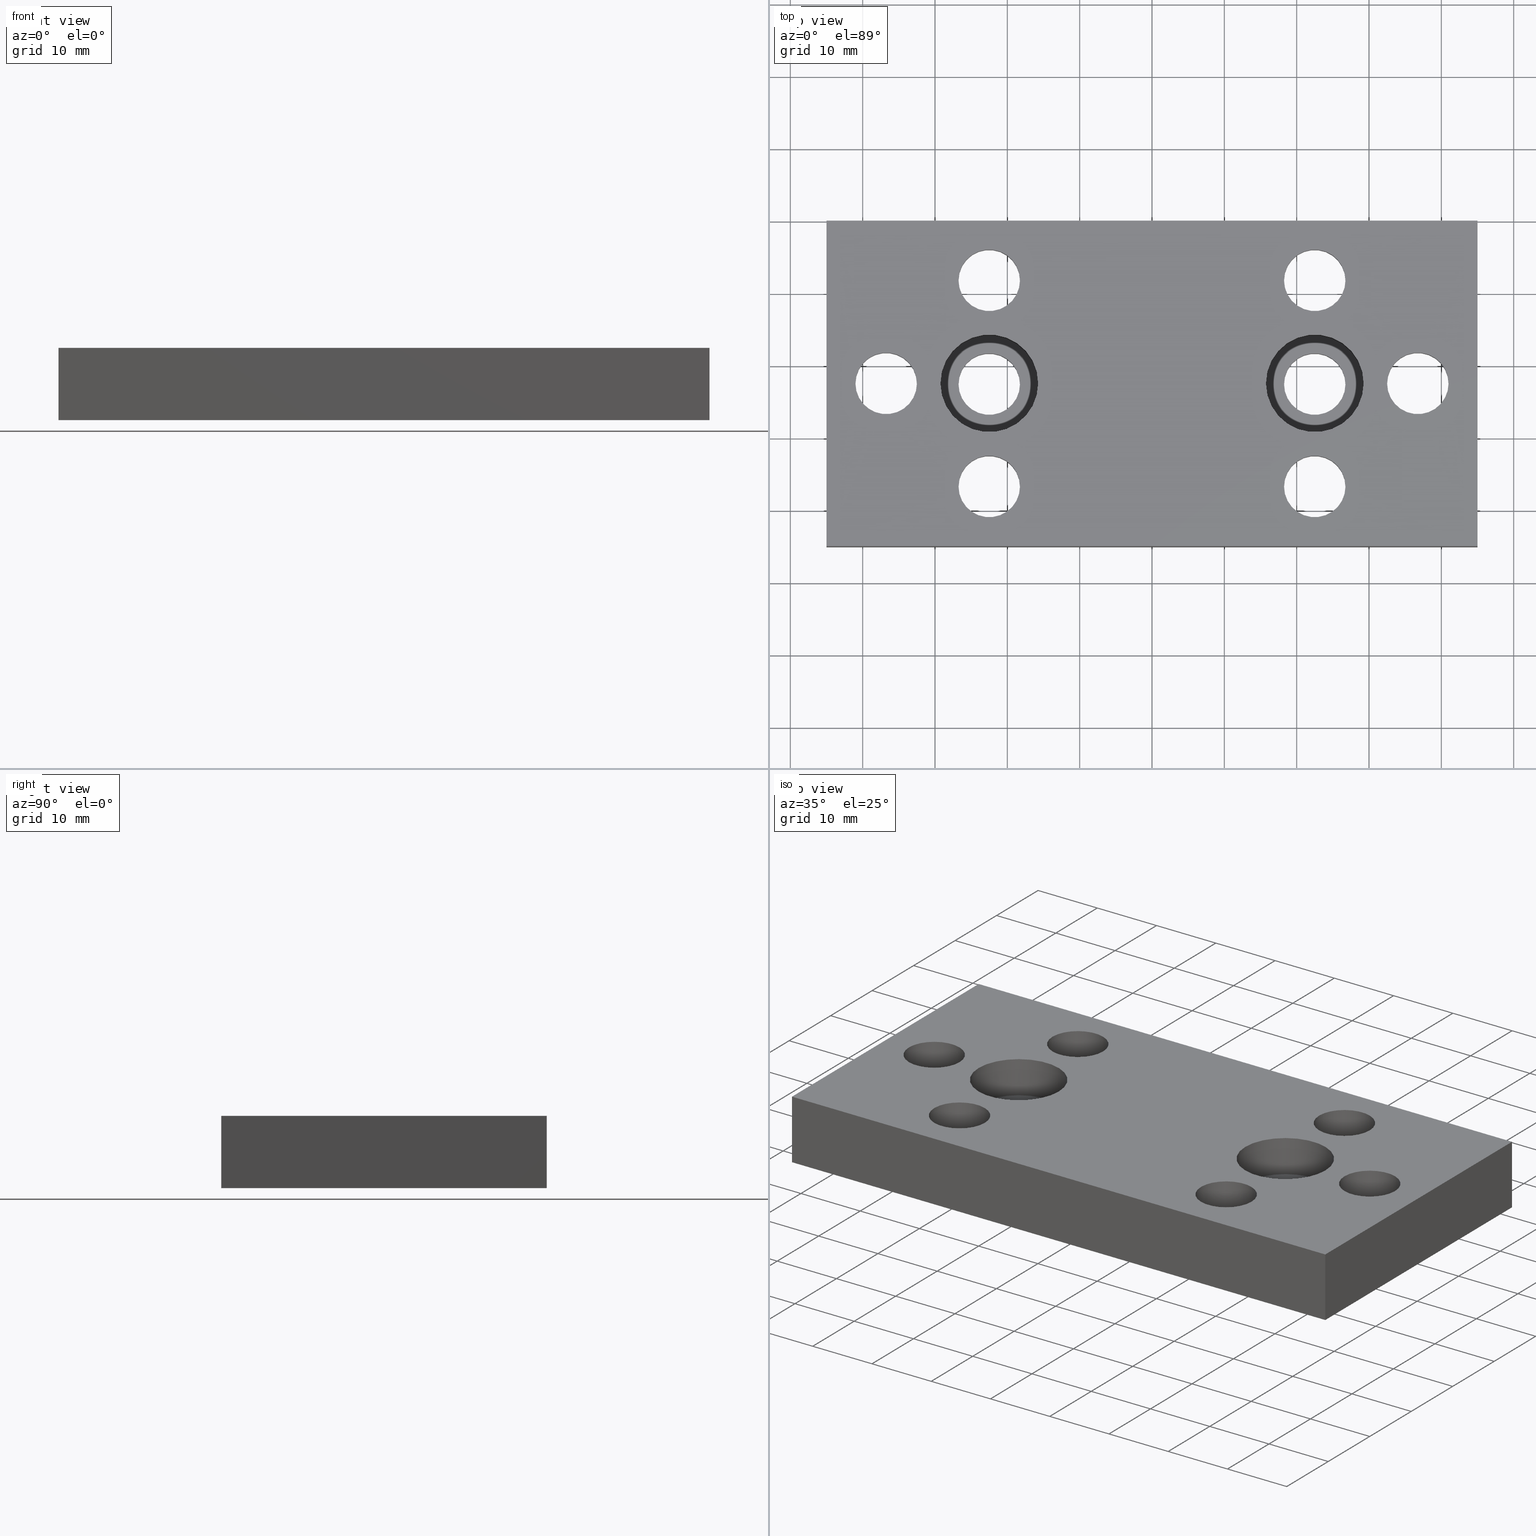
[diagram: canonical four-view strip — front | top / right | iso, engineering-drawing reading convention]
A machine part, canonical four-view strip (front | top / right | iso — engineering-drawing reading convention). The complete STEP part file that produces these views, byte-faithful:
ISO-10303-21;
HEADER;
/****************************************************************
 * Generated by software with PDE/Lib inside                    *
 * PDElib Version v4.4, created Mon 02/23/2004                  *
 * International Technegroup Inc. (www.iti-oh.com)              *
 ****************************************************************/
FILE_DESCRIPTION(('STEP AP203'),'2;1');
FILE_NAME('30.108.00.stp','2011-03-21T16:22:35',(''),(''),'2009.3.110','THINKDESIGN','');
FILE_SCHEMA(('CONFIG_CONTROL_DESIGN'));
ENDSEC;
DATA;
#2=CARTESIAN_POINT('',(44.999999999819920,0.0,10.0));
#3=DIRECTION('',(0.0,-1.0,0.0));
#4=DIRECTION('',(-1.0,0.0,0.0));
#5=AXIS2_PLACEMENT_3D('',#2,#3,#4);
#6=PLANE('',#5);
#7=CARTESIAN_POINT('',(44.999999999819920,0.0,10.0));
#8=VERTEX_POINT('',#7);
#9=CARTESIAN_POINT('',(44.999999999819920,0.0,0.0));
#10=VERTEX_POINT('',#9);
#11=CARTESIAN_POINT('',(44.999999999819920,0.0,10.0));
#12=DIRECTION('',(0.0,0.0,-1.0));
#13=VECTOR('',#12,10.0);
#14=LINE('',#11,#13);
#15=EDGE_CURVE('',#8,#10,#14,.T.);
#16=ORIENTED_EDGE('',*,*,#15,.T.);
#17=CARTESIAN_POINT('',(-44.999999999820375,0.0,0.0));
#18=VERTEX_POINT('',#17);
#19=CARTESIAN_POINT('',(44.999999999819920,0.0,0.0));
#20=DIRECTION('',(-1.0,0.0,0.0));
#21=VECTOR('',#20,89.999999999640295);
#22=LINE('',#19,#21);
#23=EDGE_CURVE('',#10,#18,#22,.T.);
#24=ORIENTED_EDGE('',*,*,#23,.T.);
#25=CARTESIAN_POINT('',(-44.999999999820375,0.0,10.0));
#26=VERTEX_POINT('',#25);
#27=CARTESIAN_POINT('',(-44.999999999820375,0.0,10.0));
#28=DIRECTION('',(0.0,0.0,-1.0));
#29=VECTOR('',#28,10.0);
#30=LINE('',#27,#29);
#31=EDGE_CURVE('',#26,#18,#30,.T.);
#32=ORIENTED_EDGE('',*,*,#31,.F.);
#33=CARTESIAN_POINT('',(44.999999999819920,0.0,10.0));
#34=DIRECTION('',(-1.0,0.0,0.0));
#35=VECTOR('',#34,89.999999999640295);
#36=LINE('',#33,#35);
#37=EDGE_CURVE('',#8,#26,#36,.T.);
#38=ORIENTED_EDGE('',*,*,#37,.F.);
#39=EDGE_LOOP('',(#16,#24,#32,#38));
#40=FACE_OUTER_BOUND('',#39,.T.);
#41=ADVANCED_FACE('',(#40),#6,.F.);
#42=CARTESIAN_POINT('',(-44.999999999820375,0.0,10.0));
#43=DIRECTION('',(1.0,0.0,0.0));
#44=DIRECTION('',(0.0,-1.0,0.0));
#45=AXIS2_PLACEMENT_3D('',#42,#43,#44);
#46=PLANE('',#45);
#47=ORIENTED_EDGE('',*,*,#31,.T.);
#48=CARTESIAN_POINT('',(-44.999999999820375,-44.999999999820034,0.0));
#49=VERTEX_POINT('',#48);
#50=CARTESIAN_POINT('',(-44.999999999820375,0.0,0.0));
#51=DIRECTION('',(0.0,-1.0,0.0));
#52=VECTOR('',#51,44.999999999820034);
#53=LINE('',#50,#52);
#54=EDGE_CURVE('',#18,#49,#53,.T.);
#55=ORIENTED_EDGE('',*,*,#54,.T.);
#56=CARTESIAN_POINT('',(-44.999999999820375,-44.999999999820034,10.0));
#57=VERTEX_POINT('',#56);
#58=CARTESIAN_POINT('',(-44.999999999820375,-44.999999999820034,10.0));
#59=DIRECTION('',(0.0,0.0,-1.0));
#60=VECTOR('',#59,10.0);
#61=LINE('',#58,#60);
#62=EDGE_CURVE('',#57,#49,#61,.T.);
#63=ORIENTED_EDGE('',*,*,#62,.F.);
#64=CARTESIAN_POINT('',(-44.999999999820375,0.0,10.0));
#65=DIRECTION('',(0.0,-1.0,0.0));
#66=VECTOR('',#65,44.999999999820034);
#67=LINE('',#64,#66);
#68=EDGE_CURVE('',#26,#57,#67,.T.);
#69=ORIENTED_EDGE('',*,*,#68,.F.);
#70=EDGE_LOOP('',(#47,#55,#63,#69));
#71=FACE_OUTER_BOUND('',#70,.T.);
#72=ADVANCED_FACE('',(#71),#46,.F.);
#73=CARTESIAN_POINT('',(-44.999999999820375,-44.999999999820034,10.0));
#74=DIRECTION('',(0.0,1.0,0.0));
#75=DIRECTION('',(1.0,0.0,0.0));
#76=AXIS2_PLACEMENT_3D('',#73,#74,#75);
#77=PLANE('',#76);
#78=ORIENTED_EDGE('',*,*,#62,.T.);
#79=CARTESIAN_POINT('',(44.999999999819920,-44.999999999820034,0.0));
#80=VERTEX_POINT('',#79);
#81=CARTESIAN_POINT('',(-44.999999999820375,-44.999999999820034,0.0));
#82=DIRECTION('',(1.0,0.0,0.0));
#83=VECTOR('',#82,89.999999999640295);
#84=LINE('',#81,#83);
#85=EDGE_CURVE('',#49,#80,#84,.T.);
#86=ORIENTED_EDGE('',*,*,#85,.T.);
#87=CARTESIAN_POINT('',(44.999999999819920,-44.999999999820034,10.0));
#88=VERTEX_POINT('',#87);
#89=CARTESIAN_POINT('',(44.999999999819920,-44.999999999820034,10.0));
#90=DIRECTION('',(0.0,0.0,-1.0));
#91=VECTOR('',#90,10.0);
#92=LINE('',#89,#91);
#93=EDGE_CURVE('',#88,#80,#92,.T.);
#94=ORIENTED_EDGE('',*,*,#93,.F.);
#95=CARTESIAN_POINT('',(-44.999999999820375,-44.999999999820034,10.0));
#96=DIRECTION('',(1.0,0.0,0.0));
#97=VECTOR('',#96,89.999999999640295);
#98=LINE('',#95,#97);
#99=EDGE_CURVE('',#57,#88,#98,.T.);
#100=ORIENTED_EDGE('',*,*,#99,.F.);
#101=EDGE_LOOP('',(#78,#86,#94,#100));
#102=FACE_OUTER_BOUND('',#101,.T.);
#103=ADVANCED_FACE('',(#102),#77,.F.);
#104=CARTESIAN_POINT('',(44.999999999819920,-44.999999999820034,10.0));
#105=DIRECTION('',(-1.0,0.0,0.0));
#106=DIRECTION('',(0.0,1.0,0.0));
#107=AXIS2_PLACEMENT_3D('',#104,#105,#106);
#108=PLANE('',#107);
#109=ORIENTED_EDGE('',*,*,#93,.T.);
#110=CARTESIAN_POINT('',(44.999999999819920,-44.999999999820034,0.0));
#111=DIRECTION('',(0.0,1.0,0.0));
#112=VECTOR('',#111,44.999999999820034);
#113=LINE('',#110,#112);
#114=EDGE_CURVE('',#80,#10,#113,.T.);
#115=ORIENTED_EDGE('',*,*,#114,.T.);
#116=ORIENTED_EDGE('',*,*,#15,.F.);
#117=CARTESIAN_POINT('',(44.999999999819920,-44.999999999820034,10.0));
#118=DIRECTION('',(0.0,1.0,0.0));
#119=VECTOR('',#118,44.999999999820034);
#120=LINE('',#117,#119);
#121=EDGE_CURVE('',#88,#8,#120,.T.);
#122=ORIENTED_EDGE('',*,*,#121,.F.);
#123=EDGE_LOOP('',(#109,#115,#116,#122));
#124=FACE_OUTER_BOUND('',#123,.T.);
#125=ADVANCED_FACE('',(#124),#108,.F.);
#126=CARTESIAN_POINT('',(-54.000004731301033,-49.500004731538638,10.0));
#127=DIRECTION('',(0.0,0.0,1.0));
#128=DIRECTION('',(1.0,0.0,0.0));
#129=AXIS2_PLACEMENT_3D('',#126,#127,#128);
#130=PLANE('',#129);
#131=ORIENTED_EDGE('',*,*,#37,.T.);
#132=ORIENTED_EDGE('',*,*,#68,.T.);
#133=ORIENTED_EDGE('',*,*,#99,.T.);
#134=ORIENTED_EDGE('',*,*,#121,.T.);
#135=EDGE_LOOP('',(#131,#132,#133,#134));
#136=FACE_OUTER_BOUND('',#135,.T.);
#137=CARTESIAN_POINT('',(-29.249999999883585,-22.499999999910074,10.0));
#138=VERTEX_POINT('',#137);
#139=CARTESIAN_POINT('',(-15.749999999937245,-22.499999999910074,9.999999999999998));
#140=VERTEX_POINT('',#139);
#141=CARTESIAN_POINT('',(-22.499999999910415,-22.499999999910074,10.0));
#142=DIRECTION('',(0.0,6.123234E-017,1.0));
#143=DIRECTION('',(1.0,0.0,0.0));
#144=AXIS2_PLACEMENT_3D('',#141,#142,#143);
#145=CIRCLE('',#144,6.749999999973170);
#146=EDGE_CURVE('',#138,#140,#145,.T.);
#147=ORIENTED_EDGE('',*,*,#146,.F.);
#148=CARTESIAN_POINT('',(-22.499999999910415,-22.499999999910074,10.0));
#149=DIRECTION('',(0.0,6.123234E-017,1.0));
#150=DIRECTION('',(1.0,0.0,0.0));
#151=AXIS2_PLACEMENT_3D('',#148,#149,#150);
#152=CIRCLE('',#151,6.749999999973170);
#153=EDGE_CURVE('',#140,#138,#152,.T.);
#154=ORIENTED_EDGE('',*,*,#153,.F.);
#155=EDGE_LOOP('',(#147,#154));
#156=FACE_BOUND('',#155,.T.);
#157=CARTESIAN_POINT('',(15.749999999936790,-22.499999999910074,10.0));
#158=VERTEX_POINT('',#157);
#159=CARTESIAN_POINT('',(29.249999999883130,-22.499999999910074,9.999999999999998));
#160=VERTEX_POINT('',#159);
#161=CARTESIAN_POINT('',(22.499999999909960,-22.499999999910074,10.0));
#162=DIRECTION('',(0.0,6.123234E-017,1.0));
#163=DIRECTION('',(1.0,0.0,0.0));
#164=AXIS2_PLACEMENT_3D('',#161,#162,#163);
#165=CIRCLE('',#164,6.749999999973170);
#166=EDGE_CURVE('',#158,#160,#165,.T.);
#167=ORIENTED_EDGE('',*,*,#166,.F.);
#168=CARTESIAN_POINT('',(22.499999999909960,-22.499999999910074,10.0));
#169=DIRECTION('',(0.0,6.123234E-017,1.0));
#170=DIRECTION('',(1.0,0.0,0.0));
#171=AXIS2_PLACEMENT_3D('',#168,#169,#170);
#172=CIRCLE('',#171,6.749999999973170);
#173=EDGE_CURVE('',#160,#158,#172,.T.);
#174=ORIENTED_EDGE('',*,*,#173,.F.);
#175=EDGE_LOOP('',(#167,#174));
#176=FACE_BOUND('',#175,.T.);
#177=CARTESIAN_POINT('',(-26.749999999893589,-8.249999999967031,10.0));
#178=VERTEX_POINT('',#177);
#179=CARTESIAN_POINT('',(-18.249999999927240,-8.249999999967031,10.0));
#180=VERTEX_POINT('',#179);
#181=CARTESIAN_POINT('',(-22.499999999910415,-8.249999999967031,10.0));
#182=DIRECTION('',(0.0,6.123234E-017,1.0));
#183=DIRECTION('',(1.0,0.0,0.0));
#184=AXIS2_PLACEMENT_3D('',#181,#182,#183);
#185=CIRCLE('',#184,4.249999999983174);
#186=EDGE_CURVE('',#178,#180,#185,.T.);
#187=ORIENTED_EDGE('',*,*,#186,.F.);
#188=CARTESIAN_POINT('',(-22.499999999910415,-8.249999999967031,10.0));
#189=DIRECTION('',(0.0,6.123234E-017,1.0));
#190=DIRECTION('',(1.0,0.0,0.0));
#191=AXIS2_PLACEMENT_3D('',#188,#189,#190);
#192=CIRCLE('',#191,4.249999999983174);
#193=EDGE_CURVE('',#180,#178,#192,.T.);
#194=ORIENTED_EDGE('',*,*,#193,.F.);
#195=EDGE_LOOP('',(#187,#194));
#196=FACE_BOUND('',#195,.T.);
#197=CARTESIAN_POINT('',(-26.749999999893589,-36.749999999853003,10.0));
#198=VERTEX_POINT('',#197);
#199=CARTESIAN_POINT('',(-18.249999999927240,-36.749999999853003,10.0));
#200=VERTEX_POINT('',#199);
#201=CARTESIAN_POINT('',(-22.499999999910415,-36.749999999853003,10.0));
#202=DIRECTION('',(0.0,6.123234E-017,1.0));
#203=DIRECTION('',(1.0,0.0,0.0));
#204=AXIS2_PLACEMENT_3D('',#201,#202,#203);
#205=CIRCLE('',#204,4.249999999983174);
#206=EDGE_CURVE('',#198,#200,#205,.T.);
#207=ORIENTED_EDGE('',*,*,#206,.F.);
#208=CARTESIAN_POINT('',(-22.499999999910415,-36.749999999853003,10.0));
#209=DIRECTION('',(0.0,6.123234E-017,1.0));
#210=DIRECTION('',(1.0,0.0,0.0));
#211=AXIS2_PLACEMENT_3D('',#208,#209,#210);
#212=CIRCLE('',#211,4.249999999983174);
#213=EDGE_CURVE('',#200,#198,#212,.T.);
#214=ORIENTED_EDGE('',*,*,#213,.F.);
#215=EDGE_LOOP('',(#207,#214));
#216=FACE_BOUND('',#215,.T.);
#217=CARTESIAN_POINT('',(18.249999999926786,-36.749999999853003,10.0));
#218=VERTEX_POINT('',#217);
#219=CARTESIAN_POINT('',(26.749999999893134,-36.749999999853003,10.0));
#220=VERTEX_POINT('',#219);
#221=CARTESIAN_POINT('',(22.499999999909960,-36.749999999853003,10.0));
#222=DIRECTION('',(0.0,6.123234E-017,1.0));
#223=DIRECTION('',(1.0,0.0,0.0));
#224=AXIS2_PLACEMENT_3D('',#221,#222,#223);
#225=CIRCLE('',#224,4.249999999983174);
#226=EDGE_CURVE('',#218,#220,#225,.T.);
#227=ORIENTED_EDGE('',*,*,#226,.F.);
#228=CARTESIAN_POINT('',(22.499999999909960,-36.749999999853003,10.0));
#229=DIRECTION('',(0.0,6.123234E-017,1.0));
#230=DIRECTION('',(1.0,0.0,0.0));
#231=AXIS2_PLACEMENT_3D('',#228,#229,#230);
#232=CIRCLE('',#231,4.249999999983174);
#233=EDGE_CURVE('',#220,#218,#232,.T.);
#234=ORIENTED_EDGE('',*,*,#233,.F.);
#235=EDGE_LOOP('',(#227,#234));
#236=FACE_BOUND('',#235,.T.);
#237=CARTESIAN_POINT('',(18.249999999926786,-8.249999999967031,10.0));
#238=VERTEX_POINT('',#237);
#239=CARTESIAN_POINT('',(26.749999999893134,-8.249999999967031,10.0));
#240=VERTEX_POINT('',#239);
#241=CARTESIAN_POINT('',(22.499999999909960,-8.249999999967031,10.0));
#242=DIRECTION('',(0.0,6.123234E-017,1.0));
#243=DIRECTION('',(1.0,0.0,0.0));
#244=AXIS2_PLACEMENT_3D('',#241,#242,#243);
#245=CIRCLE('',#244,4.249999999983174);
#246=EDGE_CURVE('',#238,#240,#245,.T.);
#247=ORIENTED_EDGE('',*,*,#246,.F.);
#248=CARTESIAN_POINT('',(22.499999999909960,-8.249999999967031,10.0));
#249=DIRECTION('',(0.0,6.123234E-017,1.0));
#250=DIRECTION('',(1.0,0.0,0.0));
#251=AXIS2_PLACEMENT_3D('',#248,#249,#250);
#252=CIRCLE('',#251,4.249999999983174);
#253=EDGE_CURVE('',#240,#238,#252,.T.);
#254=ORIENTED_EDGE('',*,*,#253,.F.);
#255=EDGE_LOOP('',(#247,#254));
#256=FACE_BOUND('',#255,.T.);
#257=CARTESIAN_POINT('',(32.499999999869488,-22.499999999910074,10.0));
#258=VERTEX_POINT('',#257);
#259=CARTESIAN_POINT('',(40.999999999835836,-22.499999999910074,10.0));
#260=VERTEX_POINT('',#259);
#261=CARTESIAN_POINT('',(36.749999999852662,-22.499999999910074,10.0));
#262=DIRECTION('',(0.0,6.123234E-017,1.0));
#263=DIRECTION('',(1.0,0.0,0.0));
#264=AXIS2_PLACEMENT_3D('',#261,#262,#263);
#265=CIRCLE('',#264,4.249999999983174);
#266=EDGE_CURVE('',#258,#260,#265,.T.);
#267=ORIENTED_EDGE('',*,*,#266,.F.);
#268=CARTESIAN_POINT('',(36.749999999852662,-22.499999999910074,10.0));
#269=DIRECTION('',(0.0,6.123234E-017,1.0));
#270=DIRECTION('',(1.0,0.0,0.0));
#271=AXIS2_PLACEMENT_3D('',#268,#269,#270);
#272=CIRCLE('',#271,4.249999999983174);
#273=EDGE_CURVE('',#260,#258,#272,.T.);
#274=ORIENTED_EDGE('',*,*,#273,.F.);
#275=EDGE_LOOP('',(#267,#274));
#276=FACE_BOUND('',#275,.T.);
#277=CARTESIAN_POINT('',(-40.999999999836291,-22.499999999910074,10.0));
#278=VERTEX_POINT('',#277);
#279=CARTESIAN_POINT('',(-32.499999999869942,-22.499999999910074,10.0));
#280=VERTEX_POINT('',#279);
#281=CARTESIAN_POINT('',(-36.749999999853117,-22.499999999910074,10.0));
#282=DIRECTION('',(0.0,6.123234E-017,1.0));
#283=DIRECTION('',(1.0,0.0,0.0));
#284=AXIS2_PLACEMENT_3D('',#281,#282,#283);
#285=CIRCLE('',#284,4.249999999983174);
#286=EDGE_CURVE('',#278,#280,#285,.T.);
#287=ORIENTED_EDGE('',*,*,#286,.F.);
#288=CARTESIAN_POINT('',(-36.749999999853117,-22.499999999910074,10.0));
#289=DIRECTION('',(0.0,6.123234E-017,1.0));
#290=DIRECTION('',(1.0,0.0,0.0));
#291=AXIS2_PLACEMENT_3D('',#288,#289,#290);
#292=CIRCLE('',#291,4.249999999983174);
#293=EDGE_CURVE('',#280,#278,#292,.T.);
#294=ORIENTED_EDGE('',*,*,#293,.F.);
#295=EDGE_LOOP('',(#287,#294));
#296=FACE_BOUND('',#295,.T.);
#297=ADVANCED_FACE('',(#136,#156,#176,#196,#216,#236,#256,#276,#296),#130,.T.);
#298=CARTESIAN_POINT('',(-54.000004731301033,-49.500004731538638,0.0));
#299=DIRECTION('',(0.0,0.0,1.0));
#300=DIRECTION('',(1.0,0.0,0.0));
#301=AXIS2_PLACEMENT_3D('',#298,#299,#300);
#302=PLANE('',#301);
#303=ORIENTED_EDGE('',*,*,#114,.F.);
#304=ORIENTED_EDGE('',*,*,#85,.F.);
#305=ORIENTED_EDGE('',*,*,#54,.F.);
#306=ORIENTED_EDGE('',*,*,#23,.F.);
#307=EDGE_LOOP('',(#303,#304,#305,#306));
#308=FACE_OUTER_BOUND('',#307,.T.);
#309=CARTESIAN_POINT('',(-18.249999999927240,-22.499999999910074,0.0));
#310=VERTEX_POINT('',#309);
#311=CARTESIAN_POINT('',(-26.749999999893589,-22.499999999910074,0.0));
#312=VERTEX_POINT('',#311);
#313=CARTESIAN_POINT('',(-22.499999999910415,-22.499999999910074,0.0));
#314=DIRECTION('',(0.0,6.123234E-017,1.0));
#315=DIRECTION('',(1.0,0.0,0.0));
#316=AXIS2_PLACEMENT_3D('',#313,#314,#315);
#317=CIRCLE('',#316,4.249999999983174);
#318=EDGE_CURVE('',#310,#312,#317,.T.);
#319=ORIENTED_EDGE('',*,*,#318,.T.);
#320=CARTESIAN_POINT('',(-22.499999999910415,-22.499999999910074,0.0));
#321=DIRECTION('',(0.0,6.123234E-017,1.0));
#322=DIRECTION('',(1.0,0.0,0.0));
#323=AXIS2_PLACEMENT_3D('',#320,#321,#322);
#324=CIRCLE('',#323,4.249999999983174);
#325=EDGE_CURVE('',#312,#310,#324,.T.);
#326=ORIENTED_EDGE('',*,*,#325,.T.);
#327=EDGE_LOOP('',(#319,#326));
#328=FACE_BOUND('',#327,.T.);
#329=CARTESIAN_POINT('',(26.749999999893134,-22.499999999910074,0.0));
#330=VERTEX_POINT('',#329);
#331=CARTESIAN_POINT('',(18.249999999926786,-22.499999999910074,0.0));
#332=VERTEX_POINT('',#331);
#333=CARTESIAN_POINT('',(22.499999999909960,-22.499999999910074,0.0));
#334=DIRECTION('',(0.0,6.123234E-017,1.0));
#335=DIRECTION('',(1.0,0.0,0.0));
#336=AXIS2_PLACEMENT_3D('',#333,#334,#335);
#337=CIRCLE('',#336,4.249999999983174);
#338=EDGE_CURVE('',#330,#332,#337,.T.);
#339=ORIENTED_EDGE('',*,*,#338,.T.);
#340=CARTESIAN_POINT('',(22.499999999909960,-22.499999999910074,0.0));
#341=DIRECTION('',(0.0,6.123234E-017,1.0));
#342=DIRECTION('',(1.0,0.0,0.0));
#343=AXIS2_PLACEMENT_3D('',#340,#341,#342);
#344=CIRCLE('',#343,4.249999999983174);
#345=EDGE_CURVE('',#332,#330,#344,.T.);
#346=ORIENTED_EDGE('',*,*,#345,.T.);
#347=EDGE_LOOP('',(#339,#346));
#348=FACE_BOUND('',#347,.T.);
#349=CARTESIAN_POINT('',(-29.249999999883585,-8.249999999967031,0.0));
#350=VERTEX_POINT('',#349);
#351=CARTESIAN_POINT('',(-15.749999999937245,-8.249999999967031,1.776357E-015));
#352=VERTEX_POINT('',#351);
#353=CARTESIAN_POINT('',(-22.499999999910415,-8.249999999967031,0.0));
#354=DIRECTION('',(0.0,-6.123234E-017,-1.0));
#355=DIRECTION('',(1.0,0.0,0.0));
#356=AXIS2_PLACEMENT_3D('',#353,#354,#355);
#357=CIRCLE('',#356,6.749999999973170);
#358=EDGE_CURVE('',#350,#352,#357,.T.);
#359=ORIENTED_EDGE('',*,*,#358,.F.);
#360=CARTESIAN_POINT('',(-22.499999999910415,-8.249999999967031,0.0));
#361=DIRECTION('',(0.0,-6.123234E-017,-1.0));
#362=DIRECTION('',(1.0,0.0,0.0));
#363=AXIS2_PLACEMENT_3D('',#360,#361,#362);
#364=CIRCLE('',#363,6.749999999973170);
#365=EDGE_CURVE('',#352,#350,#364,.T.);
#366=ORIENTED_EDGE('',*,*,#365,.F.);
#367=EDGE_LOOP('',(#359,#366));
#368=FACE_BOUND('',#367,.T.);
#369=CARTESIAN_POINT('',(-29.249999999883585,-36.749999999853003,0.0));
#370=VERTEX_POINT('',#369);
#371=CARTESIAN_POINT('',(-15.749999999937245,-36.749999999853003,1.776357E-015));
#372=VERTEX_POINT('',#371);
#373=CARTESIAN_POINT('',(-22.499999999910415,-36.749999999853003,0.0));
#374=DIRECTION('',(0.0,-6.123234E-017,-1.0));
#375=DIRECTION('',(1.0,0.0,0.0));
#376=AXIS2_PLACEMENT_3D('',#373,#374,#375);
#377=CIRCLE('',#376,6.749999999973170);
#378=EDGE_CURVE('',#370,#372,#377,.T.);
#379=ORIENTED_EDGE('',*,*,#378,.F.);
#380=CARTESIAN_POINT('',(-22.499999999910415,-36.749999999853003,0.0));
#381=DIRECTION('',(0.0,-6.123234E-017,-1.0));
#382=DIRECTION('',(1.0,0.0,0.0));
#383=AXIS2_PLACEMENT_3D('',#380,#381,#382);
#384=CIRCLE('',#383,6.749999999973170);
#385=EDGE_CURVE('',#372,#370,#384,.T.);
#386=ORIENTED_EDGE('',*,*,#385,.F.);
#387=EDGE_LOOP('',(#379,#386));
#388=FACE_BOUND('',#387,.T.);
#389=CARTESIAN_POINT('',(15.749999999936790,-36.749999999853003,0.0));
#390=VERTEX_POINT('',#389);
#391=CARTESIAN_POINT('',(29.249999999883130,-36.749999999853003,1.776357E-015));
#392=VERTEX_POINT('',#391);
#393=CARTESIAN_POINT('',(22.499999999909960,-36.749999999853003,0.0));
#394=DIRECTION('',(0.0,-6.123234E-017,-1.0));
#395=DIRECTION('',(1.0,0.0,0.0));
#396=AXIS2_PLACEMENT_3D('',#393,#394,#395);
#397=CIRCLE('',#396,6.749999999973170);
#398=EDGE_CURVE('',#390,#392,#397,.T.);
#399=ORIENTED_EDGE('',*,*,#398,.F.);
#400=CARTESIAN_POINT('',(22.499999999909960,-36.749999999853003,0.0));
#401=DIRECTION('',(0.0,-6.123234E-017,-1.0));
#402=DIRECTION('',(1.0,0.0,0.0));
#403=AXIS2_PLACEMENT_3D('',#400,#401,#402);
#404=CIRCLE('',#403,6.749999999973170);
#405=EDGE_CURVE('',#392,#390,#404,.T.);
#406=ORIENTED_EDGE('',*,*,#405,.F.);
#407=EDGE_LOOP('',(#399,#406));
#408=FACE_BOUND('',#407,.T.);
#409=CARTESIAN_POINT('',(15.749999999936790,-8.249999999967031,0.0));
#410=VERTEX_POINT('',#409);
#411=CARTESIAN_POINT('',(29.249999999883130,-8.249999999967031,1.776357E-015));
#412=VERTEX_POINT('',#411);
#413=CARTESIAN_POINT('',(22.499999999909960,-8.249999999967031,0.0));
#414=DIRECTION('',(0.0,-6.123234E-017,-1.0));
#415=DIRECTION('',(1.0,0.0,0.0));
#416=AXIS2_PLACEMENT_3D('',#413,#414,#415);
#417=CIRCLE('',#416,6.749999999973170);
#418=EDGE_CURVE('',#410,#412,#417,.T.);
#419=ORIENTED_EDGE('',*,*,#418,.F.);
#420=CARTESIAN_POINT('',(22.499999999909960,-8.249999999967031,0.0));
#421=DIRECTION('',(0.0,-6.123234E-017,-1.0));
#422=DIRECTION('',(1.0,0.0,0.0));
#423=AXIS2_PLACEMENT_3D('',#420,#421,#422);
#424=CIRCLE('',#423,6.749999999973170);
#425=EDGE_CURVE('',#412,#410,#424,.T.);
#426=ORIENTED_EDGE('',*,*,#425,.F.);
#427=EDGE_LOOP('',(#419,#426));
#428=FACE_BOUND('',#427,.T.);
#429=CARTESIAN_POINT('',(29.999999999879492,-22.499999999910074,0.0));
#430=VERTEX_POINT('',#429);
#431=CARTESIAN_POINT('',(43.499999999825832,-22.499999999910074,1.776357E-015));
#432=VERTEX_POINT('',#431);
#433=CARTESIAN_POINT('',(36.749999999852662,-22.499999999910074,0.0));
#434=DIRECTION('',(0.0,-6.123234E-017,-1.0));
#435=DIRECTION('',(1.0,0.0,0.0));
#436=AXIS2_PLACEMENT_3D('',#433,#434,#435);
#437=CIRCLE('',#436,6.749999999973170);
#438=EDGE_CURVE('',#430,#432,#437,.T.);
#439=ORIENTED_EDGE('',*,*,#438,.F.);
#440=CARTESIAN_POINT('',(36.749999999852662,-22.499999999910074,0.0));
#441=DIRECTION('',(0.0,-6.123234E-017,-1.0));
#442=DIRECTION('',(1.0,0.0,0.0));
#443=AXIS2_PLACEMENT_3D('',#440,#441,#442);
#444=CIRCLE('',#443,6.749999999973170);
#445=EDGE_CURVE('',#432,#430,#444,.T.);
#446=ORIENTED_EDGE('',*,*,#445,.F.);
#447=EDGE_LOOP('',(#439,#446));
#448=FACE_BOUND('',#447,.T.);
#449=CARTESIAN_POINT('',(-43.499999999826287,-22.499999999910074,0.0));
#450=VERTEX_POINT('',#449);
#451=CARTESIAN_POINT('',(-29.999999999879947,-22.499999999910074,1.776357E-015));
#452=VERTEX_POINT('',#451);
#453=CARTESIAN_POINT('',(-36.749999999853117,-22.499999999910074,0.0));
#454=DIRECTION('',(0.0,-6.123234E-017,-1.0));
#455=DIRECTION('',(1.0,0.0,0.0));
#456=AXIS2_PLACEMENT_3D('',#453,#454,#455);
#457=CIRCLE('',#456,6.749999999973170);
#458=EDGE_CURVE('',#450,#452,#457,.T.);
#459=ORIENTED_EDGE('',*,*,#458,.F.);
#460=CARTESIAN_POINT('',(-36.749999999853117,-22.499999999910074,0.0));
#461=DIRECTION('',(0.0,-6.123234E-017,-1.0));
#462=DIRECTION('',(1.0,0.0,0.0));
#463=AXIS2_PLACEMENT_3D('',#460,#461,#462);
#464=CIRCLE('',#463,6.749999999973170);
#465=EDGE_CURVE('',#452,#450,#464,.T.);
#466=ORIENTED_EDGE('',*,*,#465,.F.);
#467=EDGE_LOOP('',(#459,#466));
#468=FACE_BOUND('',#467,.T.);
#469=ADVANCED_FACE('',(#308,#328,#348,#368,#388,#408,#428,#448,#468),#302,.F.);
#470=CARTESIAN_POINT('',(-22.499999999910415,-22.499999999910074,-1.000016784667976));
#471=DIRECTION('',(0.0,6.123234E-017,1.0));
#472=DIRECTION('',(1.0,0.0,0.0));
#473=AXIS2_PLACEMENT_3D('',#470,#471,#472);
#474=CYLINDRICAL_SURFACE('',#473,4.249999999983174);
#475=CARTESIAN_POINT('',(-18.249999999927240,-22.499999999910074,4.499999999999998));
#476=VERTEX_POINT('',#475);
#477=CARTESIAN_POINT('',(-18.249999999927240,-22.499999999910074,0.0));
#478=DIRECTION('',(0.0,0.0,1.0));
#479=VECTOR('',#478,4.499999999999998);
#480=LINE('',#477,#479);
#481=EDGE_CURVE('',#310,#476,#480,.T.);
#482=ORIENTED_EDGE('',*,*,#481,.F.);
#483=ORIENTED_EDGE('',*,*,#325,.F.);
#484=ORIENTED_EDGE('',*,*,#318,.F.);
#485=ORIENTED_EDGE('',*,*,#481,.T.);
#486=CARTESIAN_POINT('',(-26.749999999893589,-22.499999999910074,4.499999999999998));
#487=VERTEX_POINT('',#486);
#488=CARTESIAN_POINT('',(-22.499999999910415,-22.499999999910074,4.499999999999998));
#489=DIRECTION('',(0.0,6.123234E-017,1.0));
#490=DIRECTION('',(1.0,0.0,0.0));
#491=AXIS2_PLACEMENT_3D('',#488,#489,#490);
#492=CIRCLE('',#491,4.249999999983174);
#493=EDGE_CURVE('',#476,#487,#492,.T.);
#494=ORIENTED_EDGE('',*,*,#493,.T.);
#495=CARTESIAN_POINT('',(-22.499999999910415,-22.499999999910074,4.499999999999998));
#496=DIRECTION('',(0.0,6.123234E-017,1.0));
#497=DIRECTION('',(1.0,0.0,0.0));
#498=AXIS2_PLACEMENT_3D('',#495,#496,#497);
#499=CIRCLE('',#498,4.249999999983174);
#500=EDGE_CURVE('',#487,#476,#499,.T.);
#501=ORIENTED_EDGE('',*,*,#500,.T.);
#502=EDGE_LOOP('',(#482,#483,#484,#485,#494,#501));
#503=FACE_OUTER_BOUND('',#502,.T.);
#504=ADVANCED_FACE('',(#503),#474,.F.);
#505=CARTESIAN_POINT('',(-35.999999999856755,-35.999999999856414,4.499999999999999));
#506=DIRECTION('',(0.0,0.0,-1.0));
#507=DIRECTION('',(0.0,1.0,0.0));
#508=AXIS2_PLACEMENT_3D('',#505,#506,#507);
#509=PLANE('',#508);
#510=CARTESIAN_POINT('',(-15.749999999937245,-22.499999999910074,4.499999999999998));
#511=VERTEX_POINT('',#510);
#512=CARTESIAN_POINT('',(-29.249999999883585,-22.499999999910074,4.499999999999998));
#513=VERTEX_POINT('',#512);
#514=CARTESIAN_POINT('',(-22.499999999910415,-22.499999999910074,4.499999999999998));
#515=DIRECTION('',(0.0,6.123234E-017,1.0));
#516=DIRECTION('',(1.0,0.0,0.0));
#517=AXIS2_PLACEMENT_3D('',#514,#515,#516);
#518=CIRCLE('',#517,6.749999999973170);
#519=EDGE_CURVE('',#511,#513,#518,.T.);
#520=ORIENTED_EDGE('',*,*,#519,.T.);
#521=CARTESIAN_POINT('',(-22.499999999910415,-22.499999999910074,4.499999999999998));
#522=DIRECTION('',(0.0,6.123234E-017,1.0));
#523=DIRECTION('',(1.0,0.0,0.0));
#524=AXIS2_PLACEMENT_3D('',#521,#522,#523);
#525=CIRCLE('',#524,6.749999999973170);
#526=EDGE_CURVE('',#513,#511,#525,.T.);
#527=ORIENTED_EDGE('',*,*,#526,.T.);
#528=EDGE_LOOP('',(#520,#527));
#529=FACE_OUTER_BOUND('',#528,.T.);
#530=ORIENTED_EDGE('',*,*,#500,.F.);
#531=ORIENTED_EDGE('',*,*,#493,.F.);
#532=EDGE_LOOP('',(#530,#531));
#533=FACE_BOUND('',#532,.T.);
#534=ADVANCED_FACE('',(#529,#533),#509,.F.);
#535=CARTESIAN_POINT('',(-22.499999999910415,-22.499999999910074,4.499999999999998));
#536=DIRECTION('',(0.0,6.123234E-017,1.0));
#537=DIRECTION('',(1.0,0.0,0.0));
#538=AXIS2_PLACEMENT_3D('',#535,#536,#537);
#539=CYLINDRICAL_SURFACE('',#538,6.749999999973170);
#540=CARTESIAN_POINT('',(-15.749999999937245,-22.499999999910074,4.499999999999998));
#541=DIRECTION('',(0.0,0.0,1.0));
#542=VECTOR('',#541,5.500000000000000);
#543=LINE('',#540,#542);
#544=EDGE_CURVE('',#511,#140,#543,.T.);
#545=ORIENTED_EDGE('',*,*,#544,.T.);
#546=ORIENTED_EDGE('',*,*,#153,.T.);
#547=ORIENTED_EDGE('',*,*,#146,.T.);
#548=ORIENTED_EDGE('',*,*,#544,.F.);
#549=ORIENTED_EDGE('',*,*,#526,.F.);
#550=ORIENTED_EDGE('',*,*,#519,.F.);
#551=EDGE_LOOP('',(#545,#546,#547,#548,#549,#550));
#552=FACE_OUTER_BOUND('',#551,.T.);
#553=ADVANCED_FACE('',(#552),#539,.F.);
#554=CARTESIAN_POINT('',(22.499999999909960,-22.499999999910074,-1.000016784667976));
#555=DIRECTION('',(0.0,6.123234E-017,1.0));
#556=DIRECTION('',(1.0,0.0,0.0));
#557=AXIS2_PLACEMENT_3D('',#554,#555,#556);
#558=CYLINDRICAL_SURFACE('',#557,4.249999999983174);
#559=CARTESIAN_POINT('',(26.749999999893134,-22.499999999910074,4.499999999999998));
#560=VERTEX_POINT('',#559);
#561=CARTESIAN_POINT('',(26.749999999893134,-22.499999999910074,0.0));
#562=DIRECTION('',(0.0,0.0,1.0));
#563=VECTOR('',#562,4.499999999999998);
#564=LINE('',#561,#563);
#565=EDGE_CURVE('',#330,#560,#564,.T.);
#566=ORIENTED_EDGE('',*,*,#565,.F.);
#567=ORIENTED_EDGE('',*,*,#345,.F.);
#568=ORIENTED_EDGE('',*,*,#338,.F.);
#569=ORIENTED_EDGE('',*,*,#565,.T.);
#570=CARTESIAN_POINT('',(18.249999999926786,-22.499999999910074,4.499999999999998));
#571=VERTEX_POINT('',#570);
#572=CARTESIAN_POINT('',(22.499999999909960,-22.499999999910074,4.499999999999998));
#573=DIRECTION('',(0.0,6.123234E-017,1.0));
#574=DIRECTION('',(1.0,0.0,0.0));
#575=AXIS2_PLACEMENT_3D('',#572,#573,#574);
#576=CIRCLE('',#575,4.249999999983174);
#577=EDGE_CURVE('',#560,#571,#576,.T.);
#578=ORIENTED_EDGE('',*,*,#577,.T.);
#579=CARTESIAN_POINT('',(22.499999999909960,-22.499999999910074,4.499999999999998));
#580=DIRECTION('',(0.0,6.123234E-017,1.0));
#581=DIRECTION('',(1.0,0.0,0.0));
#582=AXIS2_PLACEMENT_3D('',#579,#580,#581);
#583=CIRCLE('',#582,4.249999999983174);
#584=EDGE_CURVE('',#571,#560,#583,.T.);
#585=ORIENTED_EDGE('',*,*,#584,.T.);
#586=EDGE_LOOP('',(#566,#567,#568,#569,#578,#585));
#587=FACE_OUTER_BOUND('',#586,.T.);
#588=ADVANCED_FACE('',(#587),#558,.F.);
#589=CARTESIAN_POINT('',(8.999999999963620,-35.999999999856414,4.499999999999999));
#590=DIRECTION('',(0.0,0.0,-1.0));
#591=DIRECTION('',(0.0,1.0,0.0));
#592=AXIS2_PLACEMENT_3D('',#589,#590,#591);
#593=PLANE('',#592);
#594=CARTESIAN_POINT('',(29.249999999883130,-22.499999999910074,4.499999999999998));
#595=VERTEX_POINT('',#594);
#596=CARTESIAN_POINT('',(15.749999999936790,-22.499999999910074,4.499999999999998));
#597=VERTEX_POINT('',#596);
#598=CARTESIAN_POINT('',(22.499999999909960,-22.499999999910074,4.499999999999998));
#599=DIRECTION('',(0.0,6.123234E-017,1.0));
#600=DIRECTION('',(1.0,0.0,0.0));
#601=AXIS2_PLACEMENT_3D('',#598,#599,#600);
#602=CIRCLE('',#601,6.749999999973170);
#603=EDGE_CURVE('',#595,#597,#602,.T.);
#604=ORIENTED_EDGE('',*,*,#603,.T.);
#605=CARTESIAN_POINT('',(22.499999999909960,-22.499999999910074,4.499999999999998));
#606=DIRECTION('',(0.0,6.123234E-017,1.0));
#607=DIRECTION('',(1.0,0.0,0.0));
#608=AXIS2_PLACEMENT_3D('',#605,#606,#607);
#609=CIRCLE('',#608,6.749999999973170);
#610=EDGE_CURVE('',#597,#595,#609,.T.);
#611=ORIENTED_EDGE('',*,*,#610,.T.);
#612=EDGE_LOOP('',(#604,#611));
#613=FACE_OUTER_BOUND('',#612,.T.);
#614=ORIENTED_EDGE('',*,*,#584,.F.);
#615=ORIENTED_EDGE('',*,*,#577,.F.);
#616=EDGE_LOOP('',(#614,#615));
#617=FACE_BOUND('',#616,.T.);
#618=ADVANCED_FACE('',(#613,#617),#593,.F.);
#619=CARTESIAN_POINT('',(22.499999999909960,-22.499999999910074,4.499999999999998));
#620=DIRECTION('',(0.0,6.123234E-017,1.0));
#621=DIRECTION('',(1.0,0.0,0.0));
#622=AXIS2_PLACEMENT_3D('',#619,#620,#621);
#623=CYLINDRICAL_SURFACE('',#622,6.749999999973170);
#624=CARTESIAN_POINT('',(29.249999999883130,-22.499999999910074,4.499999999999998));
#625=DIRECTION('',(0.0,0.0,1.0));
#626=VECTOR('',#625,5.500000000000000);
#627=LINE('',#624,#626);
#628=EDGE_CURVE('',#595,#160,#627,.T.);
#629=ORIENTED_EDGE('',*,*,#628,.T.);
#630=ORIENTED_EDGE('',*,*,#173,.T.);
#631=ORIENTED_EDGE('',*,*,#166,.T.);
#632=ORIENTED_EDGE('',*,*,#628,.F.);
#633=ORIENTED_EDGE('',*,*,#610,.F.);
#634=ORIENTED_EDGE('',*,*,#603,.F.);
#635=EDGE_LOOP('',(#629,#630,#631,#632,#633,#634));
#636=FACE_OUTER_BOUND('',#635,.T.);
#637=ADVANCED_FACE('',(#636),#623,.F.);
#638=CARTESIAN_POINT('',(-22.499999999910415,-8.249999999967031,11.000016784667976));
#639=DIRECTION('',(0.0,-6.123234E-017,-1.0));
#640=DIRECTION('',(1.0,0.0,0.0));
#641=AXIS2_PLACEMENT_3D('',#638,#639,#640);
#642=CYLINDRICAL_SURFACE('',#641,4.249999999983174);
#643=CARTESIAN_POINT('',(-18.249999999927240,-8.249999999967031,5.500000000000002));
#644=VERTEX_POINT('',#643);
#645=CARTESIAN_POINT('',(-18.249999999927240,-8.249999999967031,10.0));
#646=DIRECTION('',(0.0,0.0,-1.0));
#647=VECTOR('',#646,4.499999999999998);
#648=LINE('',#645,#647);
#649=EDGE_CURVE('',#180,#644,#648,.T.);
#650=ORIENTED_EDGE('',*,*,#649,.F.);
#651=ORIENTED_EDGE('',*,*,#193,.T.);
#652=ORIENTED_EDGE('',*,*,#186,.T.);
#653=ORIENTED_EDGE('',*,*,#649,.T.);
#654=CARTESIAN_POINT('',(-26.749999999893589,-8.249999999967031,5.500000000000002));
#655=VERTEX_POINT('',#654);
#656=CARTESIAN_POINT('',(-22.499999999910415,-8.249999999967031,5.500000000000002));
#657=DIRECTION('',(0.0,-6.123234E-017,-1.0));
#658=DIRECTION('',(1.0,0.0,0.0));
#659=AXIS2_PLACEMENT_3D('',#656,#657,#658);
#660=CIRCLE('',#659,4.249999999983174);
#661=EDGE_CURVE('',#644,#655,#660,.T.);
#662=ORIENTED_EDGE('',*,*,#661,.T.);
#663=CARTESIAN_POINT('',(-22.499999999910415,-8.249999999967031,5.500000000000002));
#664=DIRECTION('',(0.0,-6.123234E-017,-1.0));
#665=DIRECTION('',(1.0,0.0,0.0));
#666=AXIS2_PLACEMENT_3D('',#663,#664,#665);
#667=CIRCLE('',#666,4.249999999983174);
#668=EDGE_CURVE('',#655,#644,#667,.T.);
#669=ORIENTED_EDGE('',*,*,#668,.T.);
#670=EDGE_LOOP('',(#650,#651,#652,#653,#662,#669));
#671=FACE_OUTER_BOUND('',#670,.T.);
#672=ADVANCED_FACE('',(#671),#642,.F.);
#673=CARTESIAN_POINT('',(-35.999999999856755,5.249999999979309,5.500000000000001));
#674=DIRECTION('',(0.0,0.0,1.0));
#675=DIRECTION('',(0.0,-1.0,0.0));
#676=AXIS2_PLACEMENT_3D('',#673,#674,#675);
#677=PLANE('',#676);
#678=CARTESIAN_POINT('',(-15.749999999937245,-8.249999999967031,5.500000000000002));
#679=VERTEX_POINT('',#678);
#680=CARTESIAN_POINT('',(-29.249999999883585,-8.249999999967031,5.500000000000002));
#681=VERTEX_POINT('',#680);
#682=CARTESIAN_POINT('',(-22.499999999910415,-8.249999999967031,5.500000000000002));
#683=DIRECTION('',(0.0,-6.123234E-017,-1.0));
#684=DIRECTION('',(1.0,0.0,0.0));
#685=AXIS2_PLACEMENT_3D('',#682,#683,#684);
#686=CIRCLE('',#685,6.749999999973170);
#687=EDGE_CURVE('',#679,#681,#686,.T.);
#688=ORIENTED_EDGE('',*,*,#687,.T.);
#689=CARTESIAN_POINT('',(-22.499999999910415,-8.249999999967031,5.500000000000002));
#690=DIRECTION('',(0.0,-6.123234E-017,-1.0));
#691=DIRECTION('',(1.0,0.0,0.0));
#692=AXIS2_PLACEMENT_3D('',#689,#690,#691);
#693=CIRCLE('',#692,6.749999999973170);
#694=EDGE_CURVE('',#681,#679,#693,.T.);
#695=ORIENTED_EDGE('',*,*,#694,.T.);
#696=EDGE_LOOP('',(#688,#695));
#697=FACE_OUTER_BOUND('',#696,.T.);
#698=ORIENTED_EDGE('',*,*,#668,.F.);
#699=ORIENTED_EDGE('',*,*,#661,.F.);
#700=EDGE_LOOP('',(#698,#699));
#701=FACE_BOUND('',#700,.T.);
#702=ADVANCED_FACE('',(#697,#701),#677,.F.);
#703=CARTESIAN_POINT('',(-22.499999999910415,-8.249999999967031,5.500000000000002));
#704=DIRECTION('',(0.0,-6.123234E-017,-1.0));
#705=DIRECTION('',(1.0,0.0,0.0));
#706=AXIS2_PLACEMENT_3D('',#703,#704,#705);
#707=CYLINDRICAL_SURFACE('',#706,6.749999999973170);
#708=CARTESIAN_POINT('',(-15.749999999937245,-8.249999999967031,5.500000000000002));
#709=DIRECTION('',(0.0,0.0,-1.0));
#710=VECTOR('',#709,5.500000000000000);
#711=LINE('',#708,#710);
#712=EDGE_CURVE('',#679,#352,#711,.T.);
#713=ORIENTED_EDGE('',*,*,#712,.T.);
#714=ORIENTED_EDGE('',*,*,#365,.T.);
#715=ORIENTED_EDGE('',*,*,#358,.T.);
#716=ORIENTED_EDGE('',*,*,#712,.F.);
#717=ORIENTED_EDGE('',*,*,#694,.F.);
#718=ORIENTED_EDGE('',*,*,#687,.F.);
#719=EDGE_LOOP('',(#713,#714,#715,#716,#717,#718));
#720=FACE_OUTER_BOUND('',#719,.T.);
#721=ADVANCED_FACE('',(#720),#707,.F.);
#722=CARTESIAN_POINT('',(-22.499999999910415,-36.749999999853003,11.000016784667976));
#723=DIRECTION('',(0.0,-6.123234E-017,-1.0));
#724=DIRECTION('',(1.0,0.0,0.0));
#725=AXIS2_PLACEMENT_3D('',#722,#723,#724);
#726=CYLINDRICAL_SURFACE('',#725,4.249999999983174);
#727=CARTESIAN_POINT('',(-18.249999999927240,-36.749999999853003,5.500000000000002));
#728=VERTEX_POINT('',#727);
#729=CARTESIAN_POINT('',(-18.249999999927240,-36.749999999853003,10.0));
#730=DIRECTION('',(0.0,0.0,-1.0));
#731=VECTOR('',#730,4.499999999999998);
#732=LINE('',#729,#731);
#733=EDGE_CURVE('',#200,#728,#732,.T.);
#734=ORIENTED_EDGE('',*,*,#733,.F.);
#735=ORIENTED_EDGE('',*,*,#213,.T.);
#736=ORIENTED_EDGE('',*,*,#206,.T.);
#737=ORIENTED_EDGE('',*,*,#733,.T.);
#738=CARTESIAN_POINT('',(-26.749999999893589,-36.749999999853003,5.500000000000002));
#739=VERTEX_POINT('',#738);
#740=CARTESIAN_POINT('',(-22.499999999910415,-36.749999999853003,5.500000000000002));
#741=DIRECTION('',(0.0,-6.123234E-017,-1.0));
#742=DIRECTION('',(1.0,0.0,0.0));
#743=AXIS2_PLACEMENT_3D('',#740,#741,#742);
#744=CIRCLE('',#743,4.249999999983174);
#745=EDGE_CURVE('',#728,#739,#744,.T.);
#746=ORIENTED_EDGE('',*,*,#745,.T.);
#747=CARTESIAN_POINT('',(-22.499999999910415,-36.749999999853003,5.500000000000002));
#748=DIRECTION('',(0.0,-6.123234E-017,-1.0));
#749=DIRECTION('',(1.0,0.0,0.0));
#750=AXIS2_PLACEMENT_3D('',#747,#748,#749);
#751=CIRCLE('',#750,4.249999999983174);
#752=EDGE_CURVE('',#739,#728,#751,.T.);
#753=ORIENTED_EDGE('',*,*,#752,.T.);
#754=EDGE_LOOP('',(#734,#735,#736,#737,#746,#753));
#755=FACE_OUTER_BOUND('',#754,.T.);
#756=ADVANCED_FACE('',(#755),#726,.F.);
#757=CARTESIAN_POINT('',(-35.999999999856755,-23.249999999906663,5.500000000000001));
#758=DIRECTION('',(0.0,0.0,1.0));
#759=DIRECTION('',(0.0,-1.0,0.0));
#760=AXIS2_PLACEMENT_3D('',#757,#758,#759);
#761=PLANE('',#760);
#762=CARTESIAN_POINT('',(-15.749999999937245,-36.749999999853003,5.500000000000002));
#763=VERTEX_POINT('',#762);
#764=CARTESIAN_POINT('',(-29.249999999883585,-36.749999999853003,5.500000000000002));
#765=VERTEX_POINT('',#764);
#766=CARTESIAN_POINT('',(-22.499999999910415,-36.749999999853003,5.500000000000002));
#767=DIRECTION('',(0.0,-6.123234E-017,-1.0));
#768=DIRECTION('',(1.0,0.0,0.0));
#769=AXIS2_PLACEMENT_3D('',#766,#767,#768);
#770=CIRCLE('',#769,6.749999999973170);
#771=EDGE_CURVE('',#763,#765,#770,.T.);
#772=ORIENTED_EDGE('',*,*,#771,.T.);
#773=CARTESIAN_POINT('',(-22.499999999910415,-36.749999999853003,5.500000000000002));
#774=DIRECTION('',(0.0,-6.123234E-017,-1.0));
#775=DIRECTION('',(1.0,0.0,0.0));
#776=AXIS2_PLACEMENT_3D('',#773,#774,#775);
#777=CIRCLE('',#776,6.749999999973170);
#778=EDGE_CURVE('',#765,#763,#777,.T.);
#779=ORIENTED_EDGE('',*,*,#778,.T.);
#780=EDGE_LOOP('',(#772,#779));
#781=FACE_OUTER_BOUND('',#780,.T.);
#782=ORIENTED_EDGE('',*,*,#752,.F.);
#783=ORIENTED_EDGE('',*,*,#745,.F.);
#784=EDGE_LOOP('',(#782,#783));
#785=FACE_BOUND('',#784,.T.);
#786=ADVANCED_FACE('',(#781,#785),#761,.F.);
#787=CARTESIAN_POINT('',(-22.499999999910415,-36.749999999853003,5.500000000000002));
#788=DIRECTION('',(0.0,-6.123234E-017,-1.0));
#789=DIRECTION('',(1.0,0.0,0.0));
#790=AXIS2_PLACEMENT_3D('',#787,#788,#789);
#791=CYLINDRICAL_SURFACE('',#790,6.749999999973170);
#792=CARTESIAN_POINT('',(-15.749999999937245,-36.749999999853003,5.500000000000002));
#793=DIRECTION('',(0.0,0.0,-1.0));
#794=VECTOR('',#793,5.500000000000000);
#795=LINE('',#792,#794);
#796=EDGE_CURVE('',#763,#372,#795,.T.);
#797=ORIENTED_EDGE('',*,*,#796,.T.);
#798=ORIENTED_EDGE('',*,*,#385,.T.);
#799=ORIENTED_EDGE('',*,*,#378,.T.);
#800=ORIENTED_EDGE('',*,*,#796,.F.);
#801=ORIENTED_EDGE('',*,*,#778,.F.);
#802=ORIENTED_EDGE('',*,*,#771,.F.);
#803=EDGE_LOOP('',(#797,#798,#799,#800,#801,#802));
#804=FACE_OUTER_BOUND('',#803,.T.);
#805=ADVANCED_FACE('',(#804),#791,.F.);
#806=CARTESIAN_POINT('',(22.499999999909960,-36.749999999853003,11.000016784667976));
#807=DIRECTION('',(0.0,-6.123234E-017,-1.0));
#808=DIRECTION('',(1.0,0.0,0.0));
#809=AXIS2_PLACEMENT_3D('',#806,#807,#808);
#810=CYLINDRICAL_SURFACE('',#809,4.249999999983174);
#811=CARTESIAN_POINT('',(26.749999999893134,-36.749999999853003,5.500000000000002));
#812=VERTEX_POINT('',#811);
#813=CARTESIAN_POINT('',(26.749999999893134,-36.749999999853003,10.0));
#814=DIRECTION('',(0.0,0.0,-1.0));
#815=VECTOR('',#814,4.499999999999998);
#816=LINE('',#813,#815);
#817=EDGE_CURVE('',#220,#812,#816,.T.);
#818=ORIENTED_EDGE('',*,*,#817,.F.);
#819=ORIENTED_EDGE('',*,*,#233,.T.);
#820=ORIENTED_EDGE('',*,*,#226,.T.);
#821=ORIENTED_EDGE('',*,*,#817,.T.);
#822=CARTESIAN_POINT('',(18.249999999926786,-36.749999999853003,5.500000000000002));
#823=VERTEX_POINT('',#822);
#824=CARTESIAN_POINT('',(22.499999999909960,-36.749999999853003,5.500000000000002));
#825=DIRECTION('',(0.0,-6.123234E-017,-1.0));
#826=DIRECTION('',(1.0,0.0,0.0));
#827=AXIS2_PLACEMENT_3D('',#824,#825,#826);
#828=CIRCLE('',#827,4.249999999983174);
#829=EDGE_CURVE('',#812,#823,#828,.T.);
#830=ORIENTED_EDGE('',*,*,#829,.T.);
#831=CARTESIAN_POINT('',(22.499999999909960,-36.749999999853003,5.500000000000002));
#832=DIRECTION('',(0.0,-6.123234E-017,-1.0));
#833=DIRECTION('',(1.0,0.0,0.0));
#834=AXIS2_PLACEMENT_3D('',#831,#832,#833);
#835=CIRCLE('',#834,4.249999999983174);
#836=EDGE_CURVE('',#823,#812,#835,.T.);
#837=ORIENTED_EDGE('',*,*,#836,.T.);
#838=EDGE_LOOP('',(#818,#819,#820,#821,#830,#837));
#839=FACE_OUTER_BOUND('',#838,.T.);
#840=ADVANCED_FACE('',(#839),#810,.F.);
#841=CARTESIAN_POINT('',(8.999999999963620,-23.249999999906663,5.500000000000001));
#842=DIRECTION('',(0.0,0.0,1.0));
#843=DIRECTION('',(0.0,-1.0,0.0));
#844=AXIS2_PLACEMENT_3D('',#841,#842,#843);
#845=PLANE('',#844);
#846=CARTESIAN_POINT('',(29.249999999883130,-36.749999999853003,5.500000000000002));
#847=VERTEX_POINT('',#846);
#848=CARTESIAN_POINT('',(15.749999999936790,-36.749999999853003,5.500000000000002));
#849=VERTEX_POINT('',#848);
#850=CARTESIAN_POINT('',(22.499999999909960,-36.749999999853003,5.500000000000002));
#851=DIRECTION('',(0.0,-6.123234E-017,-1.0));
#852=DIRECTION('',(1.0,0.0,0.0));
#853=AXIS2_PLACEMENT_3D('',#850,#851,#852);
#854=CIRCLE('',#853,6.749999999973170);
#855=EDGE_CURVE('',#847,#849,#854,.T.);
#856=ORIENTED_EDGE('',*,*,#855,.T.);
#857=CARTESIAN_POINT('',(22.499999999909960,-36.749999999853003,5.500000000000002));
#858=DIRECTION('',(0.0,-6.123234E-017,-1.0));
#859=DIRECTION('',(1.0,0.0,0.0));
#860=AXIS2_PLACEMENT_3D('',#857,#858,#859);
#861=CIRCLE('',#860,6.749999999973170);
#862=EDGE_CURVE('',#849,#847,#861,.T.);
#863=ORIENTED_EDGE('',*,*,#862,.T.);
#864=EDGE_LOOP('',(#856,#863));
#865=FACE_OUTER_BOUND('',#864,.T.);
#866=ORIENTED_EDGE('',*,*,#836,.F.);
#867=ORIENTED_EDGE('',*,*,#829,.F.);
#868=EDGE_LOOP('',(#866,#867));
#869=FACE_BOUND('',#868,.T.);
#870=ADVANCED_FACE('',(#865,#869),#845,.F.);
#871=CARTESIAN_POINT('',(22.499999999909960,-36.749999999853003,5.500000000000002));
#872=DIRECTION('',(0.0,-6.123234E-017,-1.0));
#873=DIRECTION('',(1.0,0.0,0.0));
#874=AXIS2_PLACEMENT_3D('',#871,#872,#873);
#875=CYLINDRICAL_SURFACE('',#874,6.749999999973170);
#876=CARTESIAN_POINT('',(29.249999999883130,-36.749999999853003,5.500000000000002));
#877=DIRECTION('',(0.0,0.0,-1.0));
#878=VECTOR('',#877,5.500000000000000);
#879=LINE('',#876,#878);
#880=EDGE_CURVE('',#847,#392,#879,.T.);
#881=ORIENTED_EDGE('',*,*,#880,.T.);
#882=ORIENTED_EDGE('',*,*,#405,.T.);
#883=ORIENTED_EDGE('',*,*,#398,.T.);
#884=ORIENTED_EDGE('',*,*,#880,.F.);
#885=ORIENTED_EDGE('',*,*,#862,.F.);
#886=ORIENTED_EDGE('',*,*,#855,.F.);
#887=EDGE_LOOP('',(#881,#882,#883,#884,#885,#886));
#888=FACE_OUTER_BOUND('',#887,.T.);
#889=ADVANCED_FACE('',(#888),#875,.F.);
#890=CARTESIAN_POINT('',(22.499999999909960,-8.249999999967031,11.000016784667976));
#891=DIRECTION('',(0.0,-6.123234E-017,-1.0));
#892=DIRECTION('',(1.0,0.0,0.0));
#893=AXIS2_PLACEMENT_3D('',#890,#891,#892);
#894=CYLINDRICAL_SURFACE('',#893,4.249999999983174);
#895=CARTESIAN_POINT('',(26.749999999893134,-8.249999999967031,5.500000000000002));
#896=VERTEX_POINT('',#895);
#897=CARTESIAN_POINT('',(26.749999999893134,-8.249999999967031,10.0));
#898=DIRECTION('',(0.0,0.0,-1.0));
#899=VECTOR('',#898,4.499999999999998);
#900=LINE('',#897,#899);
#901=EDGE_CURVE('',#240,#896,#900,.T.);
#902=ORIENTED_EDGE('',*,*,#901,.F.);
#903=ORIENTED_EDGE('',*,*,#253,.T.);
#904=ORIENTED_EDGE('',*,*,#246,.T.);
#905=ORIENTED_EDGE('',*,*,#901,.T.);
#906=CARTESIAN_POINT('',(18.249999999926786,-8.249999999967031,5.500000000000002));
#907=VERTEX_POINT('',#906);
#908=CARTESIAN_POINT('',(22.499999999909960,-8.249999999967031,5.500000000000002));
#909=DIRECTION('',(0.0,-6.123234E-017,-1.0));
#910=DIRECTION('',(1.0,0.0,0.0));
#911=AXIS2_PLACEMENT_3D('',#908,#909,#910);
#912=CIRCLE('',#911,4.249999999983174);
#913=EDGE_CURVE('',#896,#907,#912,.T.);
#914=ORIENTED_EDGE('',*,*,#913,.T.);
#915=CARTESIAN_POINT('',(22.499999999909960,-8.249999999967031,5.500000000000002));
#916=DIRECTION('',(0.0,-6.123234E-017,-1.0));
#917=DIRECTION('',(1.0,0.0,0.0));
#918=AXIS2_PLACEMENT_3D('',#915,#916,#917);
#919=CIRCLE('',#918,4.249999999983174);
#920=EDGE_CURVE('',#907,#896,#919,.T.);
#921=ORIENTED_EDGE('',*,*,#920,.T.);
#922=EDGE_LOOP('',(#902,#903,#904,#905,#914,#921));
#923=FACE_OUTER_BOUND('',#922,.T.);
#924=ADVANCED_FACE('',(#923),#894,.F.);
#925=CARTESIAN_POINT('',(8.999999999963620,5.249999999979309,5.500000000000001));
#926=DIRECTION('',(0.0,0.0,1.0));
#927=DIRECTION('',(0.0,-1.0,0.0));
#928=AXIS2_PLACEMENT_3D('',#925,#926,#927);
#929=PLANE('',#928);
#930=CARTESIAN_POINT('',(29.249999999883130,-8.249999999967031,5.500000000000002));
#931=VERTEX_POINT('',#930);
#932=CARTESIAN_POINT('',(15.749999999936790,-8.249999999967031,5.500000000000002));
#933=VERTEX_POINT('',#932);
#934=CARTESIAN_POINT('',(22.499999999909960,-8.249999999967031,5.500000000000002));
#935=DIRECTION('',(0.0,-6.123234E-017,-1.0));
#936=DIRECTION('',(1.0,0.0,0.0));
#937=AXIS2_PLACEMENT_3D('',#934,#935,#936);
#938=CIRCLE('',#937,6.749999999973170);
#939=EDGE_CURVE('',#931,#933,#938,.T.);
#940=ORIENTED_EDGE('',*,*,#939,.T.);
#941=CARTESIAN_POINT('',(22.499999999909960,-8.249999999967031,5.500000000000002));
#942=DIRECTION('',(0.0,-6.123234E-017,-1.0));
#943=DIRECTION('',(1.0,0.0,0.0));
#944=AXIS2_PLACEMENT_3D('',#941,#942,#943);
#945=CIRCLE('',#944,6.749999999973170);
#946=EDGE_CURVE('',#933,#931,#945,.T.);
#947=ORIENTED_EDGE('',*,*,#946,.T.);
#948=EDGE_LOOP('',(#940,#947));
#949=FACE_OUTER_BOUND('',#948,.T.);
#950=ORIENTED_EDGE('',*,*,#920,.F.);
#951=ORIENTED_EDGE('',*,*,#913,.F.);
#952=EDGE_LOOP('',(#950,#951));
#953=FACE_BOUND('',#952,.T.);
#954=ADVANCED_FACE('',(#949,#953),#929,.F.);
#955=CARTESIAN_POINT('',(22.499999999909960,-8.249999999967031,5.500000000000002));
#956=DIRECTION('',(0.0,-6.123234E-017,-1.0));
#957=DIRECTION('',(1.0,0.0,0.0));
#958=AXIS2_PLACEMENT_3D('',#955,#956,#957);
#959=CYLINDRICAL_SURFACE('',#958,6.749999999973170);
#960=CARTESIAN_POINT('',(29.249999999883130,-8.249999999967031,5.500000000000002));
#961=DIRECTION('',(0.0,0.0,-1.0));
#962=VECTOR('',#961,5.500000000000000);
#963=LINE('',#960,#962);
#964=EDGE_CURVE('',#931,#412,#963,.T.);
#965=ORIENTED_EDGE('',*,*,#964,.T.);
#966=ORIENTED_EDGE('',*,*,#425,.T.);
#967=ORIENTED_EDGE('',*,*,#418,.T.);
#968=ORIENTED_EDGE('',*,*,#964,.F.);
#969=ORIENTED_EDGE('',*,*,#946,.F.);
#970=ORIENTED_EDGE('',*,*,#939,.F.);
#971=EDGE_LOOP('',(#965,#966,#967,#968,#969,#970));
#972=FACE_OUTER_BOUND('',#971,.T.);
#973=ADVANCED_FACE('',(#972),#959,.F.);
#974=CARTESIAN_POINT('',(36.749999999852662,-22.499999999910074,11.000016784667976));
#975=DIRECTION('',(0.0,-6.123234E-017,-1.0));
#976=DIRECTION('',(1.0,0.0,0.0));
#977=AXIS2_PLACEMENT_3D('',#974,#975,#976);
#978=CYLINDRICAL_SURFACE('',#977,4.249999999983174);
#979=CARTESIAN_POINT('',(40.999999999835836,-22.499999999910074,5.500000000000002));
#980=VERTEX_POINT('',#979);
#981=CARTESIAN_POINT('',(40.999999999835836,-22.499999999910074,10.0));
#982=DIRECTION('',(0.0,0.0,-1.0));
#983=VECTOR('',#982,4.499999999999998);
#984=LINE('',#981,#983);
#985=EDGE_CURVE('',#260,#980,#984,.T.);
#986=ORIENTED_EDGE('',*,*,#985,.F.);
#987=ORIENTED_EDGE('',*,*,#273,.T.);
#988=ORIENTED_EDGE('',*,*,#266,.T.);
#989=ORIENTED_EDGE('',*,*,#985,.T.);
#990=CARTESIAN_POINT('',(32.499999999869488,-22.499999999910074,5.500000000000002));
#991=VERTEX_POINT('',#990);
#992=CARTESIAN_POINT('',(36.749999999852662,-22.499999999910074,5.500000000000002));
#993=DIRECTION('',(0.0,-6.123234E-017,-1.0));
#994=DIRECTION('',(1.0,0.0,0.0));
#995=AXIS2_PLACEMENT_3D('',#992,#993,#994);
#996=CIRCLE('',#995,4.249999999983174);
#997=EDGE_CURVE('',#980,#991,#996,.T.);
#998=ORIENTED_EDGE('',*,*,#997,.T.);
#999=CARTESIAN_POINT('',(36.749999999852662,-22.499999999910074,5.500000000000002));
#1000=DIRECTION('',(0.0,-6.123234E-017,-1.0));
#1001=DIRECTION('',(1.0,0.0,0.0));
#1002=AXIS2_PLACEMENT_3D('',#999,#1000,#1001);
#1003=CIRCLE('',#1002,4.249999999983174);
#1004=EDGE_CURVE('',#991,#980,#1003,.T.);
#1005=ORIENTED_EDGE('',*,*,#1004,.T.);
#1006=EDGE_LOOP('',(#986,#987,#988,#989,#998,#1005));
#1007=FACE_OUTER_BOUND('',#1006,.T.);
#1008=ADVANCED_FACE('',(#1007),#978,.F.);
#1009=CARTESIAN_POINT('',(23.249999999906322,-8.999999999963734,5.500000000000001));
#1010=DIRECTION('',(0.0,0.0,1.0));
#1011=DIRECTION('',(0.0,-1.0,0.0));
#1012=AXIS2_PLACEMENT_3D('',#1009,#1010,#1011);
#1013=PLANE('',#1012);
#1014=CARTESIAN_POINT('',(43.499999999825832,-22.499999999910074,5.500000000000002));
#1015=VERTEX_POINT('',#1014);
#1016=CARTESIAN_POINT('',(29.999999999879492,-22.499999999910074,5.500000000000002));
#1017=VERTEX_POINT('',#1016);
#1018=CARTESIAN_POINT('',(36.749999999852662,-22.499999999910074,5.500000000000002));
#1019=DIRECTION('',(0.0,-6.123234E-017,-1.0));
#1020=DIRECTION('',(1.0,0.0,0.0));
#1021=AXIS2_PLACEMENT_3D('',#1018,#1019,#1020);
#1022=CIRCLE('',#1021,6.749999999973170);
#1023=EDGE_CURVE('',#1015,#1017,#1022,.T.);
#1024=ORIENTED_EDGE('',*,*,#1023,.T.);
#1025=CARTESIAN_POINT('',(36.749999999852662,-22.499999999910074,5.500000000000002));
#1026=DIRECTION('',(0.0,-6.123234E-017,-1.0));
#1027=DIRECTION('',(1.0,0.0,0.0));
#1028=AXIS2_PLACEMENT_3D('',#1025,#1026,#1027);
#1029=CIRCLE('',#1028,6.749999999973170);
#1030=EDGE_CURVE('',#1017,#1015,#1029,.T.);
#1031=ORIENTED_EDGE('',*,*,#1030,.T.);
#1032=EDGE_LOOP('',(#1024,#1031));
#1033=FACE_OUTER_BOUND('',#1032,.T.);
#1034=ORIENTED_EDGE('',*,*,#1004,.F.);
#1035=ORIENTED_EDGE('',*,*,#997,.F.);
#1036=EDGE_LOOP('',(#1034,#1035));
#1037=FACE_BOUND('',#1036,.T.);
#1038=ADVANCED_FACE('',(#1033,#1037),#1013,.F.);
#1039=CARTESIAN_POINT('',(36.749999999852662,-22.499999999910074,5.500000000000002));
#1040=DIRECTION('',(0.0,-6.123234E-017,-1.0));
#1041=DIRECTION('',(1.0,0.0,0.0));
#1042=AXIS2_PLACEMENT_3D('',#1039,#1040,#1041);
#1043=CYLINDRICAL_SURFACE('',#1042,6.749999999973170);
#1044=CARTESIAN_POINT('',(43.499999999825832,-22.499999999910074,5.500000000000002));
#1045=DIRECTION('',(0.0,0.0,-1.0));
#1046=VECTOR('',#1045,5.500000000000000);
#1047=LINE('',#1044,#1046);
#1048=EDGE_CURVE('',#1015,#432,#1047,.T.);
#1049=ORIENTED_EDGE('',*,*,#1048,.T.);
#1050=ORIENTED_EDGE('',*,*,#445,.T.);
#1051=ORIENTED_EDGE('',*,*,#438,.T.);
#1052=ORIENTED_EDGE('',*,*,#1048,.F.);
#1053=ORIENTED_EDGE('',*,*,#1030,.F.);
#1054=ORIENTED_EDGE('',*,*,#1023,.F.);
#1055=EDGE_LOOP('',(#1049,#1050,#1051,#1052,#1053,#1054));
#1056=FACE_OUTER_BOUND('',#1055,.T.);
#1057=ADVANCED_FACE('',(#1056),#1043,.F.);
#1058=CARTESIAN_POINT('',(-36.749999999853117,-22.499999999910074,11.000016784667976));
#1059=DIRECTION('',(0.0,-6.123234E-017,-1.0));
#1060=DIRECTION('',(1.0,0.0,0.0));
#1061=AXIS2_PLACEMENT_3D('',#1058,#1059,#1060);
#1062=CYLINDRICAL_SURFACE('',#1061,4.249999999983174);
#1063=CARTESIAN_POINT('',(-32.499999999869942,-22.499999999910074,5.500000000000002));
#1064=VERTEX_POINT('',#1063);
#1065=CARTESIAN_POINT('',(-32.499999999869942,-22.499999999910074,10.0));
#1066=DIRECTION('',(0.0,0.0,-1.0));
#1067=VECTOR('',#1066,4.499999999999998);
#1068=LINE('',#1065,#1067);
#1069=EDGE_CURVE('',#280,#1064,#1068,.T.);
#1070=ORIENTED_EDGE('',*,*,#1069,.F.);
#1071=ORIENTED_EDGE('',*,*,#293,.T.);
#1072=ORIENTED_EDGE('',*,*,#286,.T.);
#1073=ORIENTED_EDGE('',*,*,#1069,.T.);
#1074=CARTESIAN_POINT('',(-40.999999999836291,-22.499999999910074,5.500000000000002));
#1075=VERTEX_POINT('',#1074);
#1076=CARTESIAN_POINT('',(-36.749999999853117,-22.499999999910074,5.500000000000002));
#1077=DIRECTION('',(0.0,-6.123234E-017,-1.0));
#1078=DIRECTION('',(1.0,0.0,0.0));
#1079=AXIS2_PLACEMENT_3D('',#1076,#1077,#1078);
#1080=CIRCLE('',#1079,4.249999999983174);
#1081=EDGE_CURVE('',#1064,#1075,#1080,.T.);
#1082=ORIENTED_EDGE('',*,*,#1081,.T.);
#1083=CARTESIAN_POINT('',(-36.749999999853117,-22.499999999910074,5.500000000000002));
#1084=DIRECTION('',(0.0,-6.123234E-017,-1.0));
#1085=DIRECTION('',(1.0,0.0,0.0));
#1086=AXIS2_PLACEMENT_3D('',#1083,#1084,#1085);
#1087=CIRCLE('',#1086,4.249999999983174);
#1088=EDGE_CURVE('',#1075,#1064,#1087,.T.);
#1089=ORIENTED_EDGE('',*,*,#1088,.T.);
#1090=EDGE_LOOP('',(#1070,#1071,#1072,#1073,#1082,#1089));
#1091=FACE_OUTER_BOUND('',#1090,.T.);
#1092=ADVANCED_FACE('',(#1091),#1062,.F.);
#1093=CARTESIAN_POINT('',(-50.249999999799456,-8.999999999963734,5.500000000000001));
#1094=DIRECTION('',(0.0,0.0,1.0));
#1095=DIRECTION('',(0.0,-1.0,0.0));
#1096=AXIS2_PLACEMENT_3D('',#1093,#1094,#1095);
#1097=PLANE('',#1096);
#1098=CARTESIAN_POINT('',(-29.999999999879947,-22.499999999910074,5.500000000000002));
#1099=VERTEX_POINT('',#1098);
#1100=CARTESIAN_POINT('',(-43.499999999826287,-22.499999999910074,5.500000000000002));
#1101=VERTEX_POINT('',#1100);
#1102=CARTESIAN_POINT('',(-36.749999999853117,-22.499999999910074,5.500000000000002));
#1103=DIRECTION('',(0.0,-6.123234E-017,-1.0));
#1104=DIRECTION('',(1.0,0.0,0.0));
#1105=AXIS2_PLACEMENT_3D('',#1102,#1103,#1104);
#1106=CIRCLE('',#1105,6.749999999973170);
#1107=EDGE_CURVE('',#1099,#1101,#1106,.T.);
#1108=ORIENTED_EDGE('',*,*,#1107,.T.);
#1109=CARTESIAN_POINT('',(-36.749999999853117,-22.499999999910074,5.500000000000002));
#1110=DIRECTION('',(0.0,-6.123234E-017,-1.0));
#1111=DIRECTION('',(1.0,0.0,0.0));
#1112=AXIS2_PLACEMENT_3D('',#1109,#1110,#1111);
#1113=CIRCLE('',#1112,6.749999999973170);
#1114=EDGE_CURVE('',#1101,#1099,#1113,.T.);
#1115=ORIENTED_EDGE('',*,*,#1114,.T.);
#1116=EDGE_LOOP('',(#1108,#1115));
#1117=FACE_OUTER_BOUND('',#1116,.T.);
#1118=ORIENTED_EDGE('',*,*,#1088,.F.);
#1119=ORIENTED_EDGE('',*,*,#1081,.F.);
#1120=EDGE_LOOP('',(#1118,#1119));
#1121=FACE_BOUND('',#1120,.T.);
#1122=ADVANCED_FACE('',(#1117,#1121),#1097,.F.);
#1123=CARTESIAN_POINT('',(-36.749999999853117,-22.499999999910074,5.500000000000002));
#1124=DIRECTION('',(0.0,-6.123234E-017,-1.0));
#1125=DIRECTION('',(1.0,0.0,0.0));
#1126=AXIS2_PLACEMENT_3D('',#1123,#1124,#1125);
#1127=CYLINDRICAL_SURFACE('',#1126,6.749999999973170);
#1128=CARTESIAN_POINT('',(-29.999999999879947,-22.499999999910074,5.500000000000002));
#1129=DIRECTION('',(0.0,0.0,-1.0));
#1130=VECTOR('',#1129,5.500000000000000);
#1131=LINE('',#1128,#1130);
#1132=EDGE_CURVE('',#1099,#452,#1131,.T.);
#1133=ORIENTED_EDGE('',*,*,#1132,.T.);
#1134=ORIENTED_EDGE('',*,*,#465,.T.);
#1135=ORIENTED_EDGE('',*,*,#458,.T.);
#1136=ORIENTED_EDGE('',*,*,#1132,.F.);
#1137=ORIENTED_EDGE('',*,*,#1114,.F.);
#1138=ORIENTED_EDGE('',*,*,#1107,.F.);
#1139=EDGE_LOOP('',(#1133,#1134,#1135,#1136,#1137,#1138));
#1140=FACE_OUTER_BOUND('',#1139,.T.);
#1141=ADVANCED_FACE('',(#1140),#1127,.F.);
#1142=CLOSED_SHELL('',(#41,#72,#103,#125,#297,#469,#504,#534,#553,#588,#618,#637,#672,#702,#721,#756,#786,#805,#840,#870,#889,#924,#954,#973,#1008,#1038,#1057,#1092,#1122,#1141));
#1143=MANIFOLD_SOLID_BREP('',#1142);
#1149=(NAMED_UNIT(*)PLANE_ANGLE_UNIT()SI_UNIT($,.RADIAN.));
#1150=DIMENSIONAL_EXPONENTS(0.0,0.0,0.0,0.0,0.0,0.0,0.0);
#1151=PLANE_ANGLE_MEASURE_WITH_UNIT(PLANE_ANGLE_MEASURE(0.017453292500000),#1149);
#1155=(CONVERSION_BASED_UNIT('DEGREE',#1151)NAMED_UNIT(#1150)PLANE_ANGLE_UNIT());
#1159=(NAMED_UNIT(*)SI_UNIT($,.STERADIAN.)SOLID_ANGLE_UNIT());
#1163=(LENGTH_UNIT()NAMED_UNIT(*)SI_UNIT(.MILLI.,.METRE.));
#1165=UNCERTAINTY_MEASURE_WITH_UNIT(LENGTH_MEASURE(0.001000000000000),#1163,'DISTANCE_ACCURACY_VALUE','');
#1167=(GEOMETRIC_REPRESENTATION_CONTEXT(3)GLOBAL_UNCERTAINTY_ASSIGNED_CONTEXT((#1165))GLOBAL_UNIT_ASSIGNED_CONTEXT((#1155,#1159,#1163))REPRESENTATION_CONTEXT('thinkdesign','2009.3.110'));
#1168=ADVANCED_BREP_SHAPE_REPRESENTATION('',(#1143),#1167);
#1169=APPLICATION_CONTEXT('configuration controlled 3D designs of mechanical parts and assemblies');
#1170=APPLICATION_PROTOCOL_DEFINITION('International Standard','config_control_design',1995,#1169);
#1171=MECHANICAL_CONTEXT('None',#1169,'mechanical');
#1172=PRODUCT('None','None','None',(#1171));
#1173=PRODUCT_RELATED_PRODUCT_CATEGORY('detail',$,(#1172));
#1174=PRODUCT_CATEGORY('part',$);
#1175=PRODUCT_CATEGORY_RELATIONSHIP('None','None',#1174,#1173);
#1176=PERSON('PERSON1','None','None',$,$,$);
#1177=ORGANIZATION('','None','None');
#1178=PERSON_AND_ORGANIZATION(#1176,#1177);
#1179=PERSON_AND_ORGANIZATION_ROLE('design_owner');
#1180=CC_DESIGN_PERSON_AND_ORGANIZATION_ASSIGNMENT(#1178,#1179,(#1172));
#1181=PRODUCT_DEFINITION_FORMATION_WITH_SPECIFIED_SOURCE('None','None',#1172,.NOT_KNOWN.);
#1182=PERSON('PERSON2','None','None',$,$,$);
#1183=ORGANIZATION('','None','None');
#1184=PERSON_AND_ORGANIZATION(#1182,#1183);
#1185=PERSON_AND_ORGANIZATION_ROLE('creator');
#1186=CC_DESIGN_PERSON_AND_ORGANIZATION_ASSIGNMENT(#1184,#1185,(#1181));
#1187=PERSON('PERSON3','None','None',$,$,$);
#1188=ORGANIZATION('','None','None');
#1189=PERSON_AND_ORGANIZATION(#1187,#1188);
#1190=PERSON_AND_ORGANIZATION_ROLE('part_supplier');
#1191=CC_DESIGN_PERSON_AND_ORGANIZATION_ASSIGNMENT(#1189,#1190,(#1181));
#1192=APPROVAL_STATUS('approved');
#1193=APPROVAL(#1192,'None');
#1194=PERSON('PERSON4','None','None',$,$,$);
#1195=ORGANIZATION('','None','None');
#1196=PERSON_AND_ORGANIZATION(#1194,#1195);
#1197=APPROVAL_ROLE('None');
#1198=APPROVAL_PERSON_ORGANIZATION(#1196,#1193,#1197);
#1199=CALENDAR_DATE(2011,21,3);
#1200=COORDINATED_UNIVERSAL_TIME_OFFSET(0,0,.AHEAD.);
#1201=LOCAL_TIME(16,22,35.0,#1200);
#1202=DATE_AND_TIME(#1199,#1201);
#1203=APPROVAL_DATE_TIME(#1202,#1193);
#1204=CC_DESIGN_APPROVAL(#1193,(#1181));
#1205=SECURITY_CLASSIFICATION_LEVEL('unclassified');
#1206=SECURITY_CLASSIFICATION('None','None',#1205);
#1207=CC_DESIGN_SECURITY_CLASSIFICATION(#1206,(#1181));
#1208=APPROVAL_STATUS('approved');
#1209=APPROVAL(#1208,'None');
#1210=PERSON('PERSON5','None','None',$,$,$);
#1211=ORGANIZATION('','None','None');
#1212=PERSON_AND_ORGANIZATION(#1210,#1211);
#1213=APPROVAL_ROLE('None');
#1214=APPROVAL_PERSON_ORGANIZATION(#1212,#1209,#1213);
#1215=CALENDAR_DATE(2011,21,3);
#1216=COORDINATED_UNIVERSAL_TIME_OFFSET(0,0,.AHEAD.);
#1217=LOCAL_TIME(16,22,35.0,#1216);
#1218=DATE_AND_TIME(#1215,#1217);
#1219=APPROVAL_DATE_TIME(#1218,#1209);
#1220=CC_DESIGN_APPROVAL(#1209,(#1206));
#1221=PERSON('PERSON6','None','None',$,$,$);
#1222=ORGANIZATION('','None','None');
#1223=PERSON_AND_ORGANIZATION(#1221,#1222);
#1224=PERSON_AND_ORGANIZATION_ROLE('classification_officer');
#1225=CC_DESIGN_PERSON_AND_ORGANIZATION_ASSIGNMENT(#1223,#1224,(#1206));
#1226=DATE_TIME_ROLE('classification_date');
#1227=CALENDAR_DATE(2011,21,3);
#1228=COORDINATED_UNIVERSAL_TIME_OFFSET(0,0,.AHEAD.);
#1229=LOCAL_TIME(16,22,35.0,#1228);
#1230=DATE_AND_TIME(#1227,#1229);
#1231=CC_DESIGN_DATE_AND_TIME_ASSIGNMENT(#1230,#1226,(#1206));
#1232=DESIGN_CONTEXT('part definition',#1169,'design');
#1233=DOCUMENT_TYPE('cad_filename');
#1234=DOCUMENT('None','None','None',#1233);
#1235=PRODUCT_DEFINITION_WITH_ASSOCIATED_DOCUMENTS('None','None',#1181,#1232,(#1234));
#1236=PERSON('PERSON7','None','None',$,$,$);
#1237=ORGANIZATION('','None','None');
#1238=PERSON_AND_ORGANIZATION(#1236,#1237);
#1239=PERSON_AND_ORGANIZATION_ROLE('creator');
#1240=CC_DESIGN_PERSON_AND_ORGANIZATION_ASSIGNMENT(#1238,#1239,(#1235));
#1241=DATE_TIME_ROLE('creation_date');
#1242=CALENDAR_DATE(2011,21,3);
#1243=COORDINATED_UNIVERSAL_TIME_OFFSET(0,0,.AHEAD.);
#1244=LOCAL_TIME(16,22,35.0,#1243);
#1245=DATE_AND_TIME(#1242,#1244);
#1246=CC_DESIGN_DATE_AND_TIME_ASSIGNMENT(#1245,#1241,(#1235));
#1247=APPROVAL_STATUS('approved');
#1248=APPROVAL(#1247,'None');
#1249=PERSON('PERSON8','None','None',$,$,$);
#1250=ORGANIZATION('','None','None');
#1251=PERSON_AND_ORGANIZATION(#1249,#1250);
#1252=APPROVAL_ROLE('None');
#1253=APPROVAL_PERSON_ORGANIZATION(#1251,#1248,#1252);
#1254=CALENDAR_DATE(2011,21,3);
#1255=COORDINATED_UNIVERSAL_TIME_OFFSET(0,0,.AHEAD.);
#1256=LOCAL_TIME(16,22,35.0,#1255);
#1257=DATE_AND_TIME(#1254,#1256);
#1258=APPROVAL_DATE_TIME(#1257,#1248);
#1259=CC_DESIGN_APPROVAL(#1248,(#1235));
#1260=PRODUCT_DEFINITION_SHAPE('None','None',#1235);
#1261=SHAPE_DEFINITION_REPRESENTATION(#1260,#1168);
#1262=DIMENSIONAL_EXPONENTS(0.0,0.0,0.0,0.0,0.0,0.0,0.0);
#1263=DIMENSIONAL_EXPONENTS(1.0,0.0,0.0,0.0,0.0,0.0,0.0);
ENDSEC;
END-ISO-10303-21;
